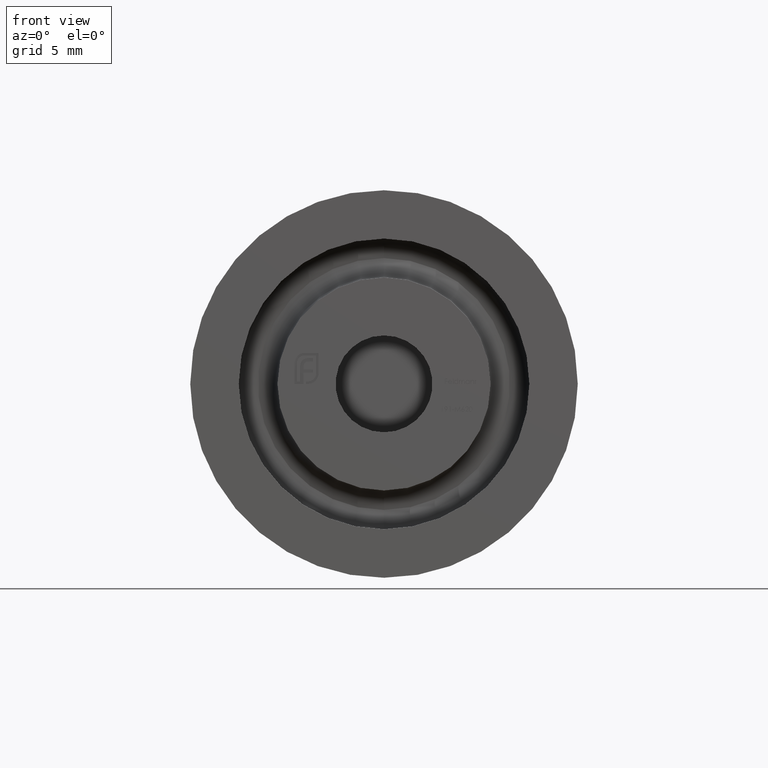
[diagram: clean part render]
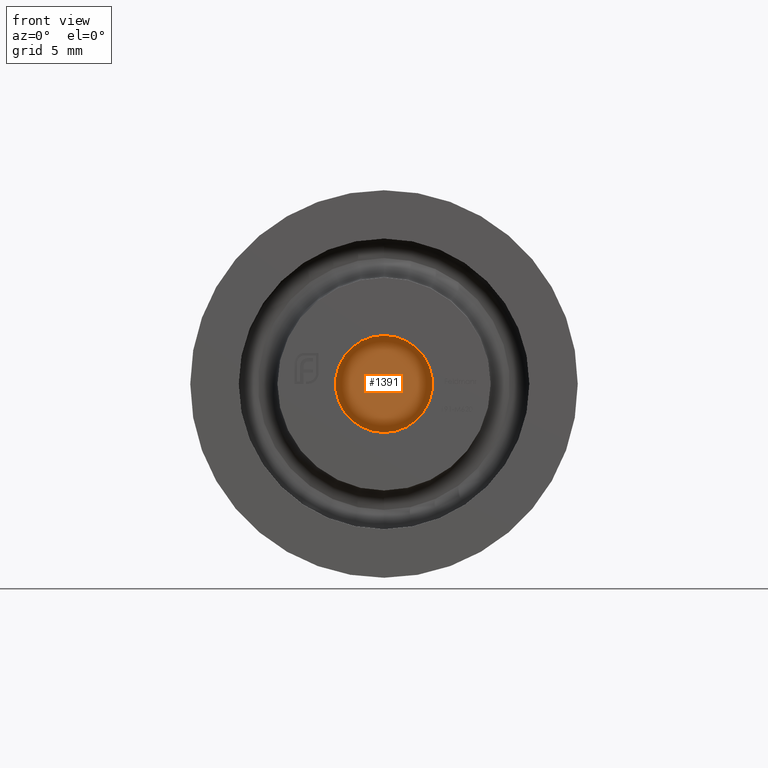
[diagram: same view with one face highlighted and labeled with its STEP entity id]
A machine part, front view. The second image highlights one B-rep face of the part: STEP entity #1391.
In plain terms, the highlighted planar face has unit normal (0, -1, 0).
Its self-contained STEP definition (entity closure, byte-faithful):
#288 = CARTESIAN_POINT ( 'NONE',  ( 0.000000000000000000, 2.999999999999999112, 0.000000000000000000 ) ) ;
#896 = ORIENTED_EDGE ( 'NONE', *, *, #11909, .F. ) ;
#1391 = ADVANCED_FACE ( 'NONE', ( #11134 ), #5902, .T. ) ;
#1538 = VERTEX_POINT ( 'NONE', #7606 ) ;
#3406 = DIRECTION ( 'NONE',  ( 0.000000000000000000, -1.000000000000000000, 0.000000000000000000 ) ) ;
#3466 = ORIENTED_EDGE ( 'NONE', *, *, #7834, .F. ) ;
#3506 = CARTESIAN_POINT ( 'NONE',  ( 0.000000000000000000, 3.000000000000000000, 0.000000000000000000 ) ) ;
#3657 = CIRCLE ( 'NONE', #14172, 2.500000000000000000 ) ;
#5082 = VERTEX_POINT ( 'NONE', #7376 ) ;
#5887 = AXIS2_PLACEMENT_3D ( 'NONE', #288, #8399, #13032 ) ;
#5902 = PLANE ( 'NONE',  #13354 ) ;
#6217 = CIRCLE ( 'NONE', #5887, 2.500000000000000000 ) ;
#6834 = CARTESIAN_POINT ( 'NONE',  ( 0.000000000000000000, 2.999999999999999112, 0.000000000000000000 ) ) ;
#7376 = CARTESIAN_POINT ( 'NONE',  ( 0.000000000000000000, 2.999999999999999112, 2.500000000000000000 ) ) ;
#7606 = CARTESIAN_POINT ( 'NONE',  ( 3.061616997868383141E-16, 2.999999999999999112, -2.500000000000000000 ) ) ;
#7834 = EDGE_CURVE ( 'NONE', #5082, #1538, #6217, .T. ) ;
#8399 = DIRECTION ( 'NONE',  ( -0.000000000000000000, 1.000000000000000000, -0.000000000000000000 ) ) ;
#11134 = FACE_OUTER_BOUND ( 'NONE', #12232, .T. ) ;
#11909 = EDGE_CURVE ( 'NONE', #1538, #5082, #3657, .T. ) ;
#12232 = EDGE_LOOP ( 'NONE', ( #3466, #896 ) ) ;
#13032 = DIRECTION ( 'NONE',  ( 0.000000000000000000, 0.000000000000000000, -1.000000000000000000 ) ) ;
#13354 = AXIS2_PLACEMENT_3D ( 'NONE', #3506, #3406, #14954 ) ;
#13876 = DIRECTION ( 'NONE',  ( 0.000000000000000000, 0.000000000000000000, -1.000000000000000000 ) ) ;
#14172 = AXIS2_PLACEMENT_3D ( 'NONE', #6834, #14981, #13876 ) ;
#14954 = DIRECTION ( 'NONE',  ( 0.000000000000000000, -0.000000000000000000, -1.000000000000000000 ) ) ;
#14981 = DIRECTION ( 'NONE',  ( -0.000000000000000000, 1.000000000000000000, -0.000000000000000000 ) ) ;